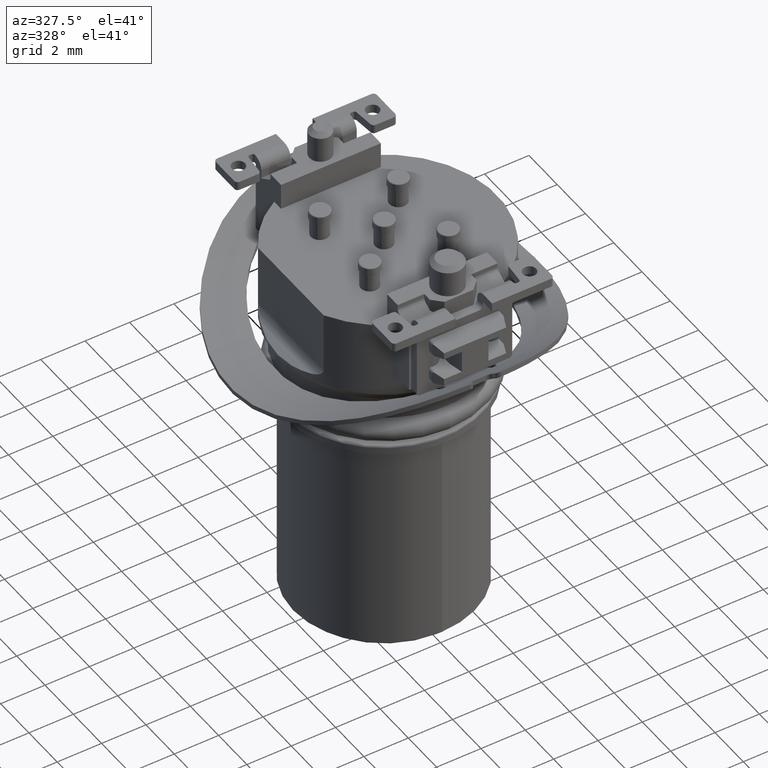
[diagram: clean part render]
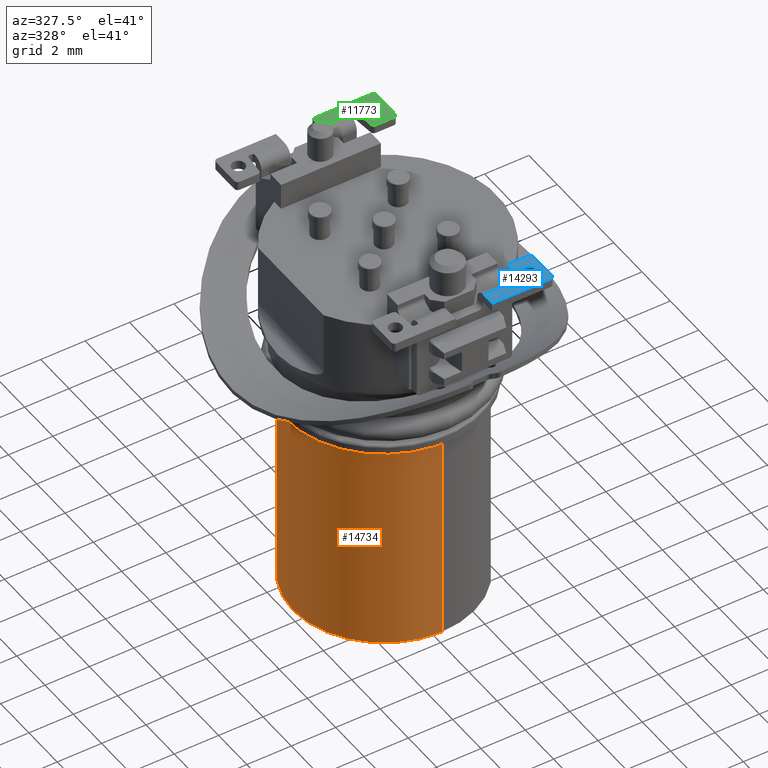
[diagram: same view with three faces highlighted in distinct colors, each labeled with its STEP entity id]
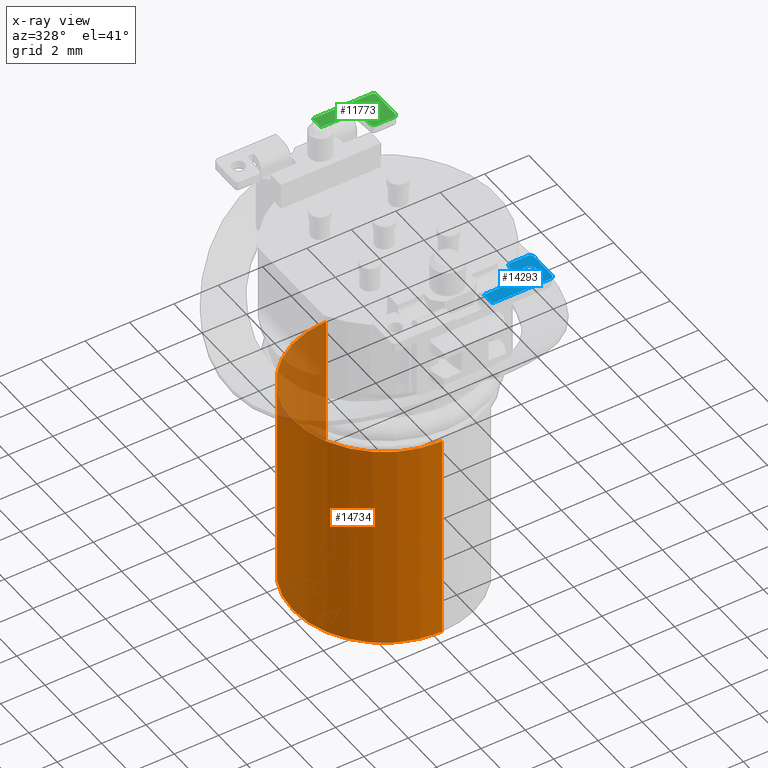
[diagram: x-ray of the same camera — body ghosted, the three highlighted faces saturated]
A machine part, auxiliary view with three faces highlighted in distinct colors.
The next image is the same camera in x-ray (body ghosted, the three faces saturated) — at least one of them is partly hidden behind the body in this view.
Their STEP definitions:

[orange] entity #14734 — the highlighted cylindrical surface (partial cylindrical patch) has radius 4.1 mm, axis along (0, 0, 1).
#3325=CARTESIAN_POINT('',(0.E0,0.E0,-8.2E0));
#3326=DIRECTION('',(0.E0,0.E0,1.E0));
#3327=DIRECTION('',(0.E0,1.E0,0.E0));
#3328=AXIS2_PLACEMENT_3D('',#3325,#3326,#3327);
#3330=CARTESIAN_POINT('',(0.E0,0.E0,-8.2E0));
#3331=DIRECTION('',(0.E0,0.E0,1.E0));
#3332=DIRECTION('',(-1.E0,0.E0,0.E0));
#3333=AXIS2_PLACEMENT_3D('',#3330,#3331,#3332);
#3335=DIRECTION('',(-7.222850312184E-10,3.664291092762E-12,-1.E0));
#3336=VECTOR('',#3335,9.600000000035E0);
#3337=CARTESIAN_POINT('',(0.E0,-4.1E0,-8.2E0));
#3338=LINE('',#3337,#3336);
#3339=CARTESIAN_POINT('',(0.E0,0.E0,-1.78E1));
#3340=DIRECTION('',(0.E0,0.E0,-1.E0));
#3341=DIRECTION('',(0.E0,-1.E0,0.E0));
#3342=AXIS2_PLACEMENT_3D('',#3339,#3340,#3341);
#3344=DIRECTION('',(-8.690064841863E-10,-6.675586009856E-12,-1.E0));
#3345=VECTOR('',#3344,9.600000000064E0);
#3346=CARTESIAN_POINT('',(0.E0,4.1E0,-8.2E0));
#3347=LINE('',#3346,#3345);
#9010=CARTESIAN_POINT('',(0.E0,-4.1E0,-1.78E1));
#9011=CARTESIAN_POINT('',(0.E0,4.1E0,-1.78E1));
#9012=VERTEX_POINT('',#9010);
#9013=VERTEX_POINT('',#9011);
#9035=CARTESIAN_POINT('',(0.E0,4.1E0,-8.2E0));
#9037=VERTEX_POINT('',#9035);
#9038=CARTESIAN_POINT('',(0.E0,-4.1E0,-8.2E0));
#9039=VERTEX_POINT('',#9038);
#9040=CARTESIAN_POINT('',(-4.1E0,0.E0,-8.2E0));
#9041=VERTEX_POINT('',#9040);
#14720=CARTESIAN_POINT('',(0.E0,0.E0,-1.884E1));
#14721=DIRECTION('',(0.E0,0.E0,1.E0));
#14722=DIRECTION('',(0.E0,1.E0,0.E0));
#14723=AXIS2_PLACEMENT_3D('',#14720,#14721,#14722);
#14724=CYLINDRICAL_SURFACE('',#14723,4.1E0);
#14725=ORIENTED_EDGE('',*,*,#14688,.T.);
#14727=ORIENTED_EDGE('',*,*,#14726,.T.);
#14728=ORIENTED_EDGE('',*,*,#14713,.T.);
#14730=ORIENTED_EDGE('',*,*,#14729,.T.);
#14731=ORIENTED_EDGE('',*,*,#14699,.F.);
#14732=EDGE_LOOP('',(#14725,#14727,#14728,#14730,#14731));
#14733=FACE_OUTER_BOUND('',#14732,.F.);
#3329=CIRCLE('',#3328,4.1E0);
#3334=CIRCLE('',#3333,4.1E0);
#3343=CIRCLE('',#3342,4.1E0);
#14688=EDGE_CURVE('',#9037,#9041,#3329,.T.);
#14699=EDGE_CURVE('',#9037,#9013,#3347,.T.);
#14713=EDGE_CURVE('',#9039,#9012,#3338,.T.);
#14726=EDGE_CURVE('',#9041,#9039,#3334,.T.);
#14729=EDGE_CURVE('',#9012,#9013,#3343,.T.);
#14734=ADVANCED_FACE('',(#14733),#14724,.T.);

[blue] entity #14293 — the highlighted planar face has unit normal (0, 0, 1).
#3002=DIRECTION('',(1.E0,0.E0,0.E0));
#3003=VECTOR('',#3002,1.325E0);
#3004=CARTESIAN_POINT('',(8.25E-1,-5.75E0,0.E0));
#3005=LINE('',#3004,#3003);
#3016=DIRECTION('',(-1.E0,0.E0,0.E0));
#3017=VECTOR('',#3016,8.336688259826E-2);
#3018=CARTESIAN_POINT('',(2.333366882598E0,-5.85E0,0.E0));
#3019=LINE('',#3018,#3017);
#3020=DIRECTION('',(-8.715574274766E-2,-9.961946980917E-1,0.E0));
#3021=VECTOR('',#3020,8.751190277933E-1);
#3022=CARTESIAN_POINT('',(2.509258001267E0,-4.886926638588E0,0.E0));
#3023=LINE('',#3022,#3021);
#3024=CARTESIAN_POINT('',(2.658687205981E0,-4.9E0,0.E0));
#3025=DIRECTION('',(0.E0,0.E0,1.E0));
#3026=DIRECTION('',(0.E0,1.E0,0.E0));
#3027=AXIS2_PLACEMENT_3D('',#3024,#3025,#3026);
#3029=DIRECTION('',(-1.E0,0.E0,0.E0));
#3030=VECTOR('',#3029,8.163127940189E-1);
#3031=CARTESIAN_POINT('',(3.475E0,-4.75E0,0.E0));
#3032=LINE('',#3031,#3030);
#3033=CARTESIAN_POINT('',(3.475E0,-4.9E0,0.E0));
#3034=DIRECTION('',(0.E0,0.E0,1.E0));
#3035=DIRECTION('',(1.E0,0.E0,0.E0));
#3036=AXIS2_PLACEMENT_3D('',#3033,#3034,#3035);
#3038=DIRECTION('',(0.E0,1.E0,0.E0));
#3039=VECTOR('',#3038,1.3E0);
#3040=CARTESIAN_POINT('',(3.625E0,-6.2E0,0.E0));
#3041=LINE('',#3040,#3039);
#3042=CARTESIAN_POINT('',(3.475E0,-6.2E0,0.E0));
#3043=DIRECTION('',(0.E0,0.E0,1.E0));
#3044=DIRECTION('',(0.E0,-1.E0,0.E0));
#3045=AXIS2_PLACEMENT_3D('',#3042,#3043,#3044);
#3047=DIRECTION('',(1.E0,0.E0,0.E0));
#3048=VECTOR('',#3047,2.65E0);
#3049=CARTESIAN_POINT('',(8.25E-1,-6.35E0,0.E0));
#3050=LINE('',#3049,#3048);
#3051=DIRECTION('',(0.E0,1.E0,0.E0));
#3052=VECTOR('',#3051,6.E-1);
#3053=CARTESIAN_POINT('',(8.25E-1,-6.35E0,0.E0));
#3054=LINE('',#3053,#3052);
#3055=CARTESIAN_POINT('',(3.025E0,-5.55E0,0.E0));
#3056=DIRECTION('',(0.E0,0.E0,1.E0));
#3057=DIRECTION('',(-1.E0,0.E0,0.E0));
#3058=AXIS2_PLACEMENT_3D('',#3055,#3056,#3057);
#3060=CARTESIAN_POINT('',(3.025E0,-5.55E0,0.E0));
#3061=DIRECTION('',(0.E0,0.E0,1.E0));
#3062=DIRECTION('',(1.E0,0.E0,0.E0));
#3063=AXIS2_PLACEMENT_3D('',#3060,#3061,#3062);
#3074=CARTESIAN_POINT('',(2.25E0,-5.75E0,0.E0));
#3075=DIRECTION('',(0.E0,0.E0,-1.E0));
#3076=DIRECTION('',(0.E0,-1.E0,0.E0));
#3077=AXIS2_PLACEMENT_3D('',#3074,#3075,#3076);
#3092=CARTESIAN_POINT('',(2.333366882598E0,-5.75E0,0.E0));
#3093=DIRECTION('',(0.E0,0.E0,-1.E0));
#3094=DIRECTION('',(9.961946980917E-1,-8.715574274766E-2,0.E0));
#3095=AXIS2_PLACEMENT_3D('',#3092,#3093,#3094);
#10119=CARTESIAN_POINT('',(2.725E0,-5.55E0,0.E0));
#10120=CARTESIAN_POINT('',(3.325E0,-5.55E0,0.E0));
#10121=VERTEX_POINT('',#10119);
#10122=VERTEX_POINT('',#10120);
#10132=CARTESIAN_POINT('',(8.25E-1,-6.35E0,0.E0));
#10134=VERTEX_POINT('',#10132);
#10156=CARTESIAN_POINT('',(2.333366882598E0,-5.85E0,0.E0));
#10158=VERTEX_POINT('',#10156);
#10160=CARTESIAN_POINT('',(2.432986352407E0,-5.758715574275E0,0.E0));
#10162=VERTEX_POINT('',#10160);
#10164=CARTESIAN_POINT('',(2.25E0,-5.85E0,0.E0));
#10166=VERTEX_POINT('',#10164);
#10199=CARTESIAN_POINT('',(3.475E0,-6.35E0,0.E0));
#10200=VERTEX_POINT('',#10199);
#10201=CARTESIAN_POINT('',(3.625E0,-6.2E0,0.E0));
#10202=VERTEX_POINT('',#10201);
#10207=CARTESIAN_POINT('',(3.625E0,-4.9E0,0.E0));
#10208=VERTEX_POINT('',#10207);
#10209=CARTESIAN_POINT('',(3.475E0,-4.75E0,0.E0));
#10210=VERTEX_POINT('',#10209);
#10215=CARTESIAN_POINT('',(2.658687205981E0,-4.75E0,0.E0));
#10216=VERTEX_POINT('',#10215);
#10217=CARTESIAN_POINT('',(2.509258001267E0,-4.886926638588E0,0.E0));
#10218=VERTEX_POINT('',#10217);
#10241=CARTESIAN_POINT('',(8.25E-1,-5.75E0,0.E0));
#10242=VERTEX_POINT('',#10241);
#10251=CARTESIAN_POINT('',(2.15E0,-5.75E0,0.E0));
#10252=VERTEX_POINT('',#10251);
#14258=CARTESIAN_POINT('',(0.E0,-6.35E0,0.E0));
#14259=DIRECTION('',(0.E0,0.E0,1.E0));
#14260=DIRECTION('',(1.E0,0.E0,0.E0));
#14261=AXIS2_PLACEMENT_3D('',#14258,#14259,#14260);
#14262=PLANE('',#14261);
#14263=ORIENTED_EDGE('',*,*,#14250,.T.);
#14265=ORIENTED_EDGE('',*,*,#14264,.F.);
#14267=ORIENTED_EDGE('',*,*,#14266,.F.);
#14269=ORIENTED_EDGE('',*,*,#14268,.F.);
#14271=ORIENTED_EDGE('',*,*,#14270,.F.);
#14273=ORIENTED_EDGE('',*,*,#14272,.F.);
#14275=ORIENTED_EDGE('',*,*,#14274,.F.);
#14277=ORIENTED_EDGE('',*,*,#14276,.F.);
#14279=ORIENTED_EDGE('',*,*,#14278,.F.);
#14281=ORIENTED_EDGE('',*,*,#14280,.F.);
#14283=ORIENTED_EDGE('',*,*,#14282,.F.);
#14284=ORIENTED_EDGE('',*,*,#13719,.T.);
#14285=EDGE_LOOP('',(#14263,#14265,#14267,#14269,#14271,#14273,#14275,#14277,
#14279,#14281,#14283,#14284));
#14286=FACE_OUTER_BOUND('',#14285,.F.);
#14288=ORIENTED_EDGE('',*,*,#14287,.T.);
#14290=ORIENTED_EDGE('',*,*,#14289,.T.);
#14291=EDGE_LOOP('',(#14288,#14290));
#14292=FACE_BOUND('',#14291,.F.);
#3028=CIRCLE('',#3027,1.5E-1);
#3037=CIRCLE('',#3036,1.5E-1);
#3046=CIRCLE('',#3045,1.5E-1);
#3059=CIRCLE('',#3058,3.E-1);
#3064=CIRCLE('',#3063,3.E-1);
#3078=CIRCLE('',#3077,1.E-1);
#3096=CIRCLE('',#3095,1.E-1);
#13719=EDGE_CURVE('',#10134,#10242,#3054,.T.);
#14250=EDGE_CURVE('',#10242,#10252,#3005,.T.);
#14264=EDGE_CURVE('',#10166,#10252,#3078,.T.);
#14266=EDGE_CURVE('',#10158,#10166,#3019,.T.);
#14268=EDGE_CURVE('',#10162,#10158,#3096,.T.);
#14270=EDGE_CURVE('',#10218,#10162,#3023,.T.);
#14272=EDGE_CURVE('',#10216,#10218,#3028,.T.);
#14274=EDGE_CURVE('',#10210,#10216,#3032,.T.);
#14276=EDGE_CURVE('',#10208,#10210,#3037,.T.);
#14278=EDGE_CURVE('',#10202,#10208,#3041,.T.);
#14280=EDGE_CURVE('',#10200,#10202,#3046,.T.);
#14282=EDGE_CURVE('',#10134,#10200,#3050,.T.);
#14287=EDGE_CURVE('',#10121,#10122,#3059,.T.);
#14289=EDGE_CURVE('',#10122,#10121,#3064,.T.);
#14293=ADVANCED_FACE('',(#14286,#14292),#14262,.T.);

[green] entity #11773 — the highlighted planar face has unit normal (0, 0, 1).
#569=CARTESIAN_POINT('',(2.25E0,5.75E0,0.E0));
#570=DIRECTION('',(0.E0,0.E0,-1.E0));
#571=DIRECTION('',(-1.E0,0.E0,0.E0));
#572=AXIS2_PLACEMENT_3D('',#569,#570,#571);
#579=DIRECTION('',(0.E0,-1.E0,0.E0));
#580=VECTOR('',#579,6.E-1);
#581=CARTESIAN_POINT('',(8.25E-1,6.35E0,0.E0));
#582=LINE('',#581,#580);
#583=DIRECTION('',(-1.E0,0.E0,0.E0));
#584=VECTOR('',#583,2.65E0);
#585=CARTESIAN_POINT('',(3.475E0,6.35E0,0.E0));
#586=LINE('',#585,#584);
#587=CARTESIAN_POINT('',(3.475E0,6.2E0,0.E0));
#588=DIRECTION('',(0.E0,0.E0,1.E0));
#589=DIRECTION('',(1.E0,0.E0,0.E0));
#590=AXIS2_PLACEMENT_3D('',#587,#588,#589);
#592=DIRECTION('',(0.E0,1.E0,0.E0));
#593=VECTOR('',#592,1.3E0);
#594=CARTESIAN_POINT('',(3.625E0,4.9E0,0.E0));
#595=LINE('',#594,#593);
#596=CARTESIAN_POINT('',(3.475E0,4.9E0,0.E0));
#597=DIRECTION('',(0.E0,0.E0,1.E0));
#598=DIRECTION('',(0.E0,-1.E0,0.E0));
#599=AXIS2_PLACEMENT_3D('',#596,#597,#598);
#601=DIRECTION('',(1.E0,0.E0,0.E0));
#602=VECTOR('',#601,8.163127940189E-1);
#603=CARTESIAN_POINT('',(2.658687205981E0,4.75E0,0.E0));
#604=LINE('',#603,#602);
#605=CARTESIAN_POINT('',(2.658687205981E0,4.9E0,0.E0));
#606=DIRECTION('',(0.E0,0.E0,1.E0));
#607=DIRECTION('',(-9.961946980917E-1,-8.715574274765E-2,0.E0));
#608=AXIS2_PLACEMENT_3D('',#605,#606,#607);
#610=DIRECTION('',(8.715574274766E-2,-9.961946980917E-1,0.E0));
#611=VECTOR('',#610,8.751190277933E-1);
#612=CARTESIAN_POINT('',(2.432986352407E0,5.758715574275E0,0.E0));
#613=LINE('',#612,#611);
#614=DIRECTION('',(1.E0,0.E0,0.E0));
#615=VECTOR('',#614,8.336688259826E-2);
#616=CARTESIAN_POINT('',(2.25E0,5.85E0,0.E0));
#617=LINE('',#616,#615);
#618=CARTESIAN_POINT('',(3.025E0,5.55E0,0.E0));
#619=DIRECTION('',(0.E0,0.E0,1.E0));
#620=DIRECTION('',(1.E0,0.E0,0.E0));
#621=AXIS2_PLACEMENT_3D('',#618,#619,#620);
#623=CARTESIAN_POINT('',(3.025E0,5.55E0,0.E0));
#624=DIRECTION('',(0.E0,0.E0,1.E0));
#625=DIRECTION('',(-1.E0,0.E0,0.E0));
#626=AXIS2_PLACEMENT_3D('',#623,#624,#625);
#628=DIRECTION('',(-1.E0,0.E0,0.E0));
#629=VECTOR('',#628,1.325E0);
#630=CARTESIAN_POINT('',(2.15E0,5.75E0,0.E0));
#631=LINE('',#630,#629);
#683=CARTESIAN_POINT('',(2.333366882598E0,5.75E0,0.E0));
#684=DIRECTION('',(0.E0,0.E0,-1.E0));
#685=DIRECTION('',(0.E0,1.E0,0.E0));
#686=AXIS2_PLACEMENT_3D('',#683,#684,#685);
#10495=CARTESIAN_POINT('',(3.325E0,5.55E0,0.E0));
#10496=CARTESIAN_POINT('',(2.725E0,5.55E0,0.E0));
#10497=VERTEX_POINT('',#10495);
#10498=VERTEX_POINT('',#10496);
#10500=CARTESIAN_POINT('',(8.25E-1,6.35E0,0.E0));
#10502=VERTEX_POINT('',#10500);
#10516=CARTESIAN_POINT('',(2.25E0,5.85E0,0.E0));
#10518=VERTEX_POINT('',#10516);
#10520=CARTESIAN_POINT('',(2.432986352407E0,5.758715574275E0,0.E0));
#10522=VERTEX_POINT('',#10520);
#10524=CARTESIAN_POINT('',(2.333366882598E0,5.85E0,0.E0));
#10526=VERTEX_POINT('',#10524);
#10547=CARTESIAN_POINT('',(3.625E0,6.2E0,0.E0));
#10548=VERTEX_POINT('',#10547);
#10549=CARTESIAN_POINT('',(3.475E0,6.35E0,0.E0));
#10550=VERTEX_POINT('',#10549);
#10555=CARTESIAN_POINT('',(3.475E0,4.75E0,0.E0));
#10556=VERTEX_POINT('',#10555);
#10557=CARTESIAN_POINT('',(3.625E0,4.9E0,0.E0));
#10558=VERTEX_POINT('',#10557);
#10563=CARTESIAN_POINT('',(2.509258001267E0,4.886926638588E0,0.E0));
#10564=VERTEX_POINT('',#10563);
#10565=CARTESIAN_POINT('',(2.658687205981E0,4.75E0,0.E0));
#10566=VERTEX_POINT('',#10565);
#10611=CARTESIAN_POINT('',(8.25E-1,5.75E0,0.E0));
#10612=VERTEX_POINT('',#10611);
#10621=CARTESIAN_POINT('',(2.15E0,5.75E0,0.E0));
#10622=VERTEX_POINT('',#10621);
#11737=CARTESIAN_POINT('',(0.E0,6.35E0,0.E0));
#11738=DIRECTION('',(0.E0,0.E0,1.E0));
#11739=DIRECTION('',(-1.E0,0.E0,0.E0));
#11740=AXIS2_PLACEMENT_3D('',#11737,#11738,#11739);
#11741=PLANE('',#11740);
#11743=ORIENTED_EDGE('',*,*,#11742,.T.);
#11745=ORIENTED_EDGE('',*,*,#11744,.F.);
#11747=ORIENTED_EDGE('',*,*,#11746,.F.);
#11749=ORIENTED_EDGE('',*,*,#11748,.F.);
#11751=ORIENTED_EDGE('',*,*,#11750,.F.);
#11753=ORIENTED_EDGE('',*,*,#11752,.F.);
#11755=ORIENTED_EDGE('',*,*,#11754,.F.);
#11757=ORIENTED_EDGE('',*,*,#11756,.F.);
#11759=ORIENTED_EDGE('',*,*,#11758,.F.);
#11761=ORIENTED_EDGE('',*,*,#11760,.F.);
#11763=ORIENTED_EDGE('',*,*,#11762,.F.);
#11764=ORIENTED_EDGE('',*,*,#11729,.F.);
#11765=EDGE_LOOP('',(#11743,#11745,#11747,#11749,#11751,#11753,#11755,#11757,
#11759,#11761,#11763,#11764));
#11766=FACE_OUTER_BOUND('',#11765,.F.);
#11768=ORIENTED_EDGE('',*,*,#11767,.T.);
#11770=ORIENTED_EDGE('',*,*,#11769,.T.);
#11771=EDGE_LOOP('',(#11768,#11770));
#11772=FACE_BOUND('',#11771,.F.);
#573=CIRCLE('',#572,1.E-1);
#591=CIRCLE('',#590,1.5E-1);
#600=CIRCLE('',#599,1.5E-1);
#609=CIRCLE('',#608,1.5E-1);
#622=CIRCLE('',#621,3.E-1);
#627=CIRCLE('',#626,3.E-1);
#687=CIRCLE('',#686,1.E-1);
#11729=EDGE_CURVE('',#10622,#10518,#573,.T.);
#11742=EDGE_CURVE('',#10622,#10612,#631,.T.);
#11744=EDGE_CURVE('',#10502,#10612,#582,.T.);
#11746=EDGE_CURVE('',#10550,#10502,#586,.T.);
#11748=EDGE_CURVE('',#10548,#10550,#591,.T.);
#11750=EDGE_CURVE('',#10558,#10548,#595,.T.);
#11752=EDGE_CURVE('',#10556,#10558,#600,.T.);
#11754=EDGE_CURVE('',#10566,#10556,#604,.T.);
#11756=EDGE_CURVE('',#10564,#10566,#609,.T.);
#11758=EDGE_CURVE('',#10522,#10564,#613,.T.);
#11760=EDGE_CURVE('',#10526,#10522,#687,.T.);
#11762=EDGE_CURVE('',#10518,#10526,#617,.T.);
#11767=EDGE_CURVE('',#10497,#10498,#622,.T.);
#11769=EDGE_CURVE('',#10498,#10497,#627,.T.);
#11773=ADVANCED_FACE('',(#11766,#11772),#11741,.T.);